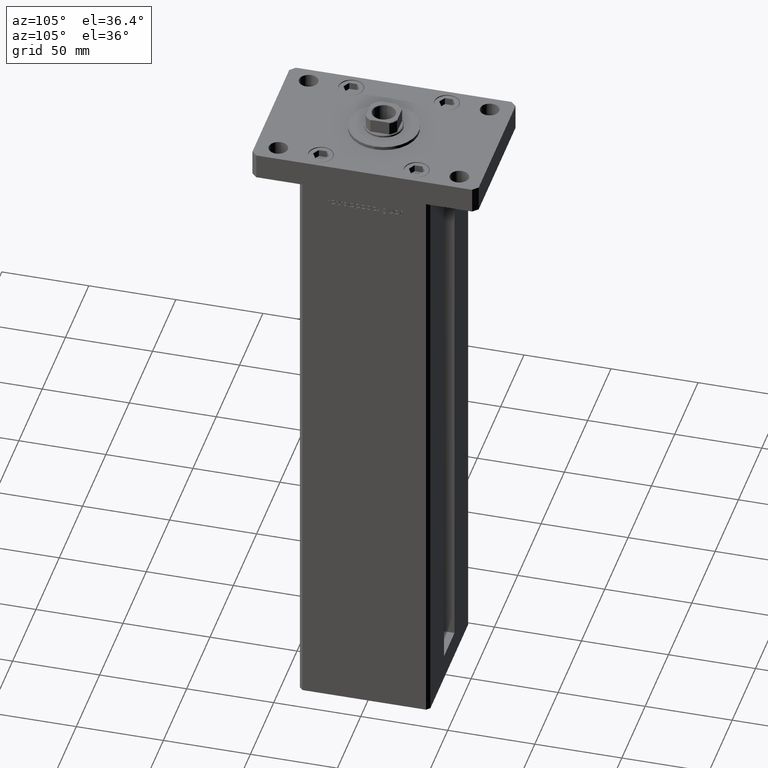
[diagram: clean part render]
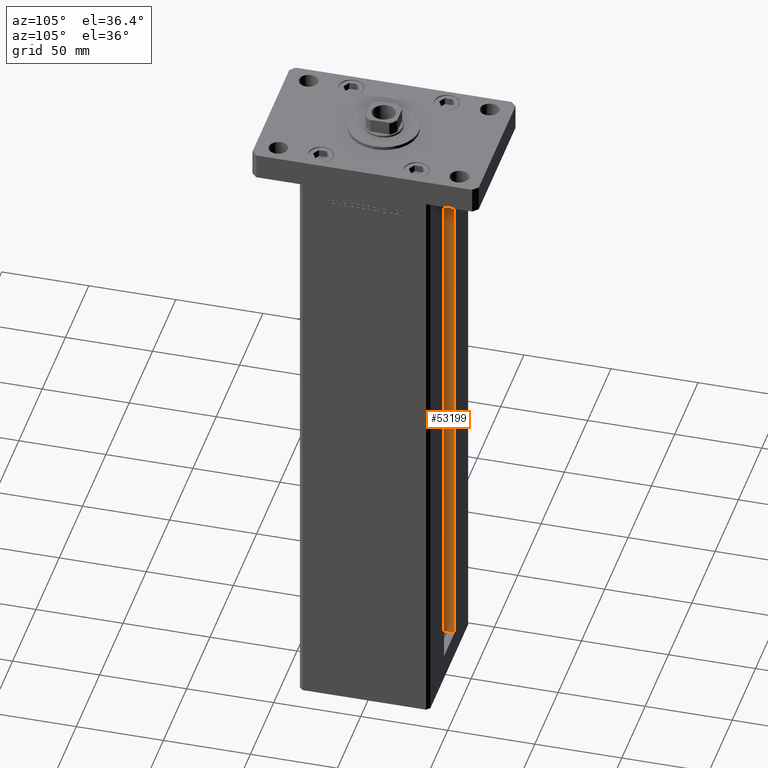
[diagram: same view with one face highlighted and labeled with its STEP entity id]
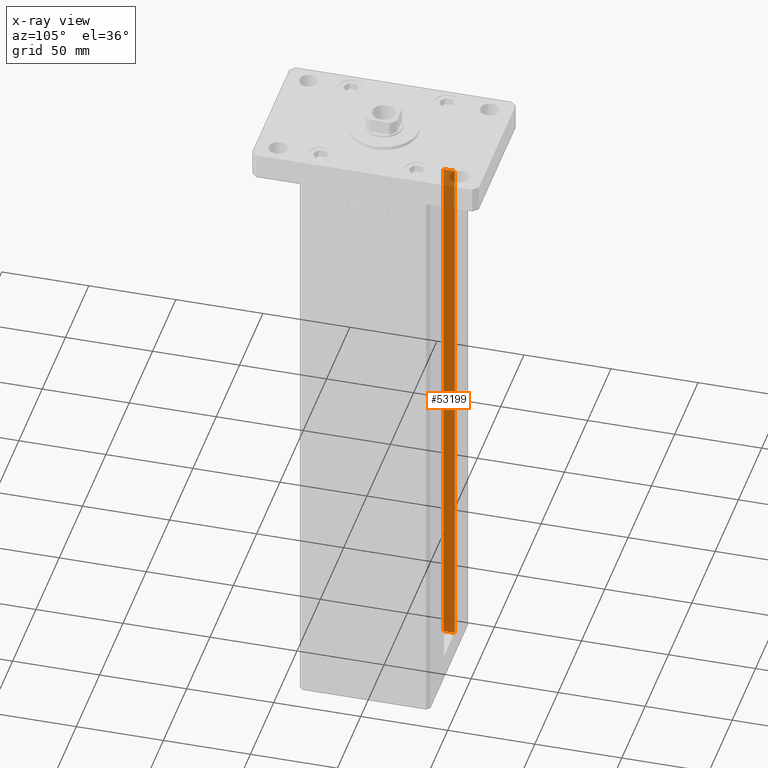
[diagram: x-ray of the same camera — body ghosted, the highlighted face saturated]
A machine part, auxiliary view. The second image highlights one B-rep face of the part: STEP entity #53199.
The next image is the same camera in x-ray: the body ghosted, the highlighted face saturated — about 8% of this face is hidden behind the body in this view.
In plain terms, the highlighted planar face has unit normal (-1, 0, 0).
Its self-contained STEP definition (entity closure, byte-faithful):
#58 = VERTEX_POINT ( 'NONE', #52982 ) ;
#370 = CARTESIAN_POINT ( 'NONE',  ( -11.25000000000000000, 30.99999999999999289, 0.000000000000000000 ) ) ;
#1243 = ORIENTED_EDGE ( 'NONE', *, *, #34768, .F. ) ;
#1797 = EDGE_CURVE ( 'NONE', #58, #37982, #52474, .T. ) ;
#3753 = VECTOR ( 'NONE', #17156, 1000.000000000000000 ) ;
#6439 = VERTEX_POINT ( 'NONE', #23730 ) ;
#6900 = EDGE_CURVE ( 'NONE', #58, #6439, #7309, .T. ) ;
#7309 = LINE ( 'NONE', #27389, #40799 ) ;
#7544 = ORIENTED_EDGE ( 'NONE', *, *, #45148, .F. ) ;
#7620 = CARTESIAN_POINT ( 'NONE',  ( -11.25000000000000000, 30.99999999999999289, 318.5000000000000000 ) ) ;
#7693 = DIRECTION ( 'NONE',  ( -0.000000000000000000, -1.000000000000000000, -0.000000000000000000 ) ) ;
#10428 = FACE_OUTER_BOUND ( 'NONE', #41329, .T. ) ;
#10693 = DIRECTION ( 'NONE',  ( 0.000000000000000000, 0.000000000000000000, 1.000000000000000000 ) ) ;
#12539 = LINE ( 'NONE', #25288, #3753 ) ;
#14021 = VECTOR ( 'NONE', #7693, 1000.000000000000000 ) ;
#14252 = ORIENTED_EDGE ( 'NONE', *, *, #1797, .F. ) ;
#17156 = DIRECTION ( 'NONE',  ( -0.000000000000000000, -0.000000000000000000, 1.000000000000000000 ) ) ;
#18981 = DIRECTION ( 'NONE',  ( -0.000000000000000000, -0.000000000000000000, 1.000000000000000000 ) ) ;
#19549 = AXIS2_PLACEMENT_3D ( 'NONE', #52211, #51946, #10693 ) ;
#20683 = VECTOR ( 'NONE', #48028, 1000.000000000000000 ) ;
#23730 = CARTESIAN_POINT ( 'NONE',  ( -11.25000000000000000, 37.50000000000000000, 318.5000000000000000 ) ) ;
#25288 = CARTESIAN_POINT ( 'NONE',  ( -11.25000000000000000, 30.99999999999999289, 0.000000000000000000 ) ) ;
#27389 = CARTESIAN_POINT ( 'NONE',  ( -11.25000000000000000, 37.50000000000000000, 0.000000000000000000 ) ) ;
#27767 = VERTEX_POINT ( 'NONE', #7620 ) ;
#31446 = LINE ( 'NONE', #44215, #20683 ) ;
#34768 = EDGE_CURVE ( 'NONE', #27767, #6439, #31446, .T. ) ;
#37982 = VERTEX_POINT ( 'NONE', #370 ) ;
#40799 = VECTOR ( 'NONE', #18981, 1000.000000000000000 ) ;
#41329 = EDGE_LOOP ( 'NONE', ( #7544, #14252, #43501, #1243 ) ) ;
#43501 = ORIENTED_EDGE ( 'NONE', *, *, #6900, .T. ) ;
#44215 = CARTESIAN_POINT ( 'NONE',  ( -11.25000000000000000, 0.000000000000000000, 318.5000000000000000 ) ) ;
#44854 = CARTESIAN_POINT ( 'NONE',  ( -11.25000000000000000, 30.99999999999999289, 0.000000000000000000 ) ) ;
#45148 = EDGE_CURVE ( 'NONE', #37982, #27767, #12539, .T. ) ;
#48028 = DIRECTION ( 'NONE',  ( 0.000000000000000000, 1.000000000000000000, 0.000000000000000000 ) ) ;
#51946 = DIRECTION ( 'NONE',  ( -1.000000000000000000, 0.000000000000000000, 0.000000000000000000 ) ) ;
#52211 = CARTESIAN_POINT ( 'NONE',  ( -11.25000000000000000, 30.99999999999999289, 0.000000000000000000 ) ) ;
#52474 = LINE ( 'NONE', #44854, #14021 ) ;
#52485 = PLANE ( 'NONE',  #19549 ) ;
#52982 = CARTESIAN_POINT ( 'NONE',  ( -11.25000000000000000, 37.50000000000000000, 0.000000000000000000 ) ) ;
#53199 = ADVANCED_FACE ( 'NONE', ( #10428 ), #52485, .F. ) ;